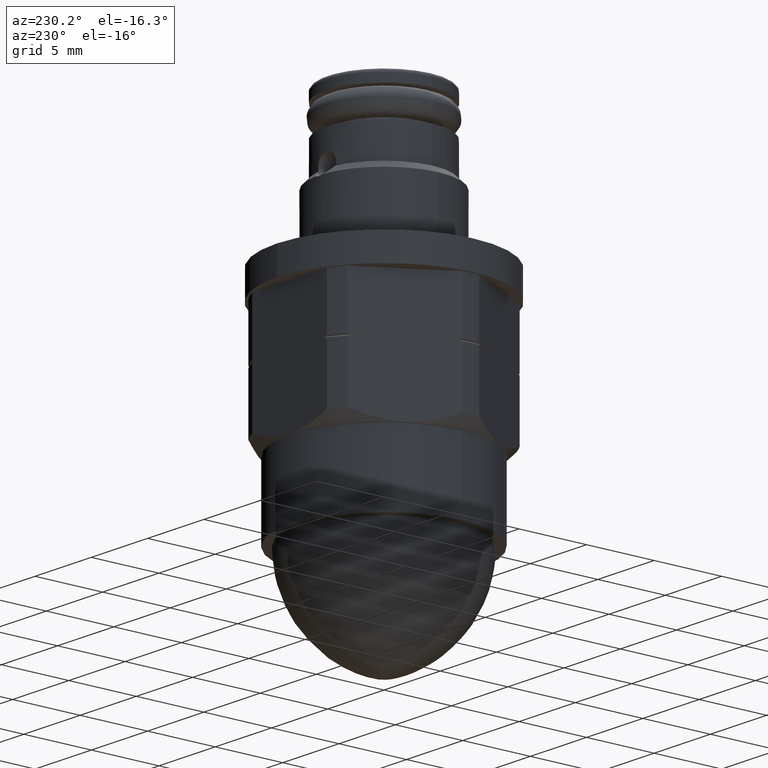
[diagram: clean part render]
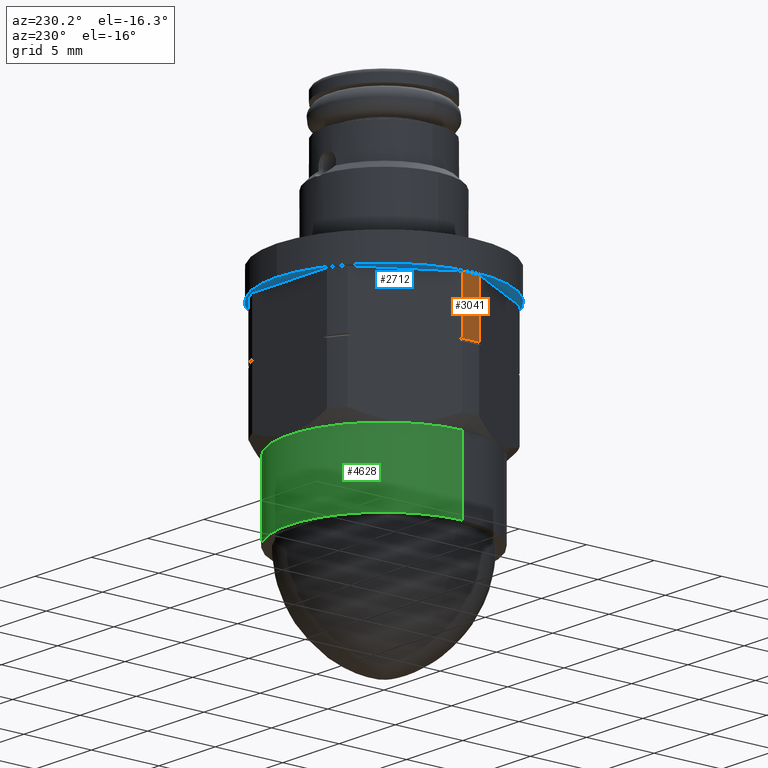
[diagram: same view with three faces highlighted in distinct colors, each labeled with its STEP entity id]
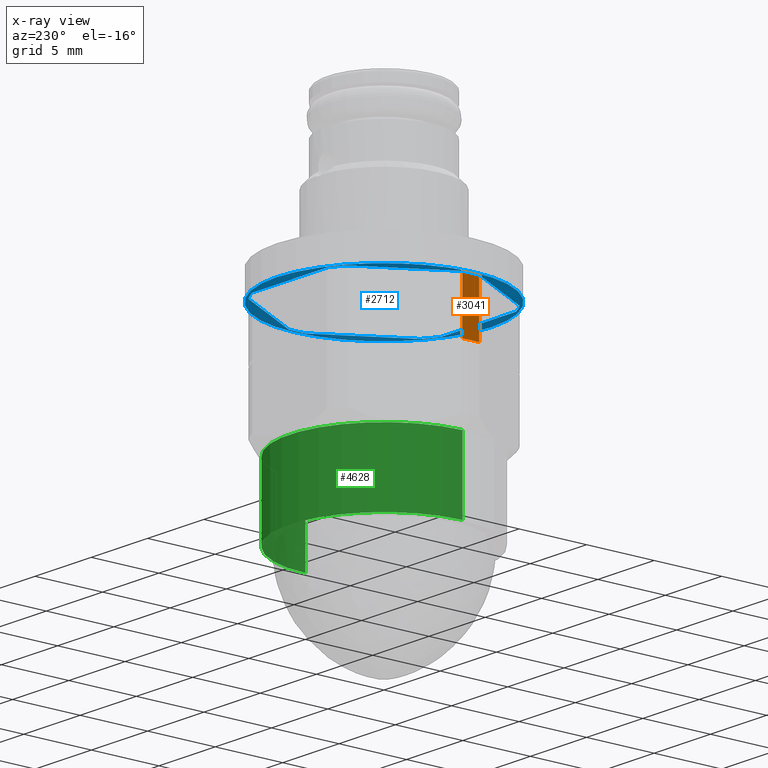
[diagram: x-ray of the same camera — body ghosted, the three highlighted faces saturated]
A machine part, auxiliary view with three faces highlighted in distinct colors.
The next image is the same camera in x-ray (body ghosted, the three faces saturated) — at least one of them is partly hidden behind the body in this view.
Their STEP definitions:

[orange] entity #3041 — the highlighted cylindrical surface (partial cylindrical patch) has radius 7.747 mm, axis along (0, 0, -1).
#762=CARTESIAN_POINT('',(-7.722127882661E0,-6.202821646863E-1,
-3.990676515813E0));
#769=DIRECTION('',(0.E0,0.E0,-1.E0));
#770=VECTOR('',#769,3.990676515813E0);
#771=CARTESIAN_POINT('',(-7.722127882661E0,-6.202821646863E-1,0.E0));
#772=LINE('',#771,#770);
#1067=DIRECTION('',(-7.366847594783E-13,-1.276706959865E-12,-1.E0));
#1068=VECTOR('',#1067,3.990676515813E0);
#1069=CARTESIAN_POINT('',(-7.722127882658E0,6.202821646914E-1,0.E0));
#1070=LINE('',#1069,#1068);
#1076=CARTESIAN_POINT('',(-7.722127882661E0,6.202821646863E-1,
-3.990676515813E0));
#1128=CARTESIAN_POINT('',(0.E0,0.E0,-3.990676515813E0));
#1129=DIRECTION('',(0.E0,0.E0,-1.E0));
#1130=DIRECTION('',(-9.967894517440E-1,-8.006740217971E-2,0.E0));
#1131=AXIS2_PLACEMENT_3D('',#1128,#1129,#1130);
#1133=CARTESIAN_POINT('',(0.E0,0.E0,0.E0));
#1134=DIRECTION('',(0.E0,0.E0,-1.E0));
#1135=DIRECTION('',(-9.967894517440E-1,-8.006740217972E-2,0.E0));
#1136=AXIS2_PLACEMENT_3D('',#1133,#1134,#1135);
#1702=VERTEX_POINT('',#762);
#1703=VERTEX_POINT('',#1076);
#1789=CARTESIAN_POINT('',(-7.722127882661E0,-6.202821646863E-1,0.E0));
#1791=VERTEX_POINT('',#1789);
#1792=CARTESIAN_POINT('',(-7.722127882658E0,6.202821646914E-1,0.E0));
#1794=VERTEX_POINT('',#1792);
#3029=CARTESIAN_POINT('',(0.E0,0.E0,4.5593E-1));
#3030=DIRECTION('',(0.E0,0.E0,-1.E0));
#3031=DIRECTION('',(-1.E0,0.E0,0.E0));
#3032=AXIS2_PLACEMENT_3D('',#3029,#3030,#3031);
#3033=CYLINDRICAL_SURFACE('',#3032,7.747E0);
#3034=ORIENTED_EDGE('',*,*,#2747,.T.);
#3036=ORIENTED_EDGE('',*,*,#3035,.T.);
#3037=ORIENTED_EDGE('',*,*,#3002,.F.);
#3038=ORIENTED_EDGE('',*,*,#2688,.F.);
#3039=EDGE_LOOP('',(#3034,#3036,#3037,#3038));
#3040=FACE_OUTER_BOUND('',#3039,.F.);
#3041=ADVANCED_FACE('',(#3040),#3033,.T.);
#1132=CIRCLE('',#1131,7.747E0);
#1137=CIRCLE('',#1136,7.747E0);
#2688=EDGE_CURVE('',#1791,#1794,#1137,.T.);
#2747=EDGE_CURVE('',#1791,#1702,#772,.T.);
#3002=EDGE_CURVE('',#1794,#1703,#1070,.T.);
#3035=EDGE_CURVE('',#1702,#1703,#1132,.T.);

[blue] entity #2712 — the highlighted planar face has unit normal (0, 0, -1).
#698=CARTESIAN_POINT('',(0.E0,0.E0,0.E0));
#699=DIRECTION('',(0.E0,0.E0,-1.E0));
#700=DIRECTION('',(0.E0,1.E0,0.E0));
#701=AXIS2_PLACEMENT_3D('',#698,#699,#700);
#703=CARTESIAN_POINT('',(0.E0,0.E0,0.E0));
#704=DIRECTION('',(0.E0,0.E0,1.E0));
#705=DIRECTION('',(0.E0,1.E0,0.E0));
#706=AXIS2_PLACEMENT_3D('',#703,#704,#705);
#708=DIRECTION('',(-5.E-1,8.660254037844E-1,0.E0));
#709=VECTOR('',#708,6.647767658396E0);
#710=CARTESIAN_POINT('',(-4.398244053463E0,-6.377417835314E0,0.E0));
#711=LINE('',#710,#709);
#773=CARTESIAN_POINT('',(0.E0,0.E0,0.E0));
#774=DIRECTION('',(0.E0,0.E0,-1.E0));
#775=DIRECTION('',(-4.290543215675E-1,-9.032786885255E-1,0.E0));
#776=AXIS2_PLACEMENT_3D('',#773,#774,#775);
#778=DIRECTION('',(-1.E0,0.E0,0.E0));
#779=VECTOR('',#778,6.647767658394E0);
#780=CARTESIAN_POINT('',(3.323883829202E0,-6.9977E0,0.E0));
#781=LINE('',#780,#779);
#843=CARTESIAN_POINT('',(0.E0,0.E0,0.E0));
#844=DIRECTION('',(0.E0,0.E0,-1.E0));
#845=DIRECTION('',(5.677351301775E-1,-8.232112863429E-1,0.E0));
#846=AXIS2_PLACEMENT_3D('',#843,#844,#845);
#848=DIRECTION('',(-5.E-1,-8.660254037844E-1,0.E0));
#849=VECTOR('',#848,6.647767658394E0);
#850=CARTESIAN_POINT('',(7.722127882666E0,-6.202821646787E-1,0.E0));
#851=LINE('',#850,#849);
#918=CARTESIAN_POINT('',(0.E0,0.E0,0.E0));
#919=DIRECTION('',(0.E0,0.E0,-1.E0));
#920=DIRECTION('',(9.967894517441E-1,8.006740217947E-2,0.E0));
#921=AXIS2_PLACEMENT_3D('',#918,#919,#920);
#923=DIRECTION('',(5.E-1,-8.660254037844E-1,0.E0));
#924=VECTOR('',#923,6.647767658396E0);
#925=CARTESIAN_POINT('',(4.398244053464E0,6.377417835314E0,0.E0));
#926=LINE('',#925,#924);
#988=CARTESIAN_POINT('',(0.E0,0.E0,0.E0));
#989=DIRECTION('',(0.E0,0.E0,-1.E0));
#990=DIRECTION('',(4.290543215724E-1,9.032786885231E-1,0.E0));
#991=AXIS2_PLACEMENT_3D('',#988,#989,#990);
#993=DIRECTION('',(1.E0,0.E0,0.E0));
#994=VECTOR('',#993,6.647767658395E0);
#995=CARTESIAN_POINT('',(-3.323883829188E0,6.9977E0,0.E0));
#996=LINE('',#995,#994);
#1058=CARTESIAN_POINT('',(0.E0,0.E0,0.E0));
#1059=DIRECTION('',(0.E0,0.E0,-1.E0));
#1060=DIRECTION('',(-5.677351301734E-1,8.232112863457E-1,0.E0));
#1061=AXIS2_PLACEMENT_3D('',#1058,#1059,#1060);
#1063=DIRECTION('',(5.E-1,8.660254037844E-1,0.E0));
#1064=VECTOR('',#1063,6.647767658394E0);
#1065=CARTESIAN_POINT('',(-7.722127882658E0,6.202821646914E-1,0.E0));
#1066=LINE('',#1065,#1064);
#1133=CARTESIAN_POINT('',(0.E0,0.E0,0.E0));
#1134=DIRECTION('',(0.E0,0.E0,-1.E0));
#1135=DIRECTION('',(-9.967894517440E-1,-8.006740217972E-2,0.E0));
#1136=AXIS2_PLACEMENT_3D('',#1133,#1134,#1135);
#1781=CARTESIAN_POINT('',(0.E0,7.94E0,0.E0));
#1783=VERTEX_POINT('',#1781);
#1785=CARTESIAN_POINT('',(0.E0,-7.94E0,0.E0));
#1787=VERTEX_POINT('',#1785);
#1788=CARTESIAN_POINT('',(-4.398244053463E0,-6.377417835314E0,0.E0));
#1789=CARTESIAN_POINT('',(-7.722127882661E0,-6.202821646863E-1,0.E0));
#1790=VERTEX_POINT('',#1788);
#1791=VERTEX_POINT('',#1789);
#1792=CARTESIAN_POINT('',(-7.722127882658E0,6.202821646914E-1,0.E0));
#1793=CARTESIAN_POINT('',(-4.398244053461E0,6.377417835317E0,0.E0));
#1794=VERTEX_POINT('',#1792);
#1795=VERTEX_POINT('',#1793);
#1796=CARTESIAN_POINT('',(-3.323883829188E0,6.9977E0,0.E0));
#1797=CARTESIAN_POINT('',(3.323883829207E0,6.9977E0,0.E0));
#1798=VERTEX_POINT('',#1796);
#1799=VERTEX_POINT('',#1797);
#1800=CARTESIAN_POINT('',(4.398244053464E0,6.377417835314E0,0.E0));
#1801=CARTESIAN_POINT('',(7.722127882662E0,6.202821646863E-1,0.E0));
#1802=VERTEX_POINT('',#1800);
#1803=VERTEX_POINT('',#1801);
#1804=CARTESIAN_POINT('',(7.722127882666E0,-6.202821646787E-1,0.E0));
#1805=CARTESIAN_POINT('',(4.398244053469E0,-6.377417835305E0,0.E0));
#1806=VERTEX_POINT('',#1804);
#1807=VERTEX_POINT('',#1805);
#1808=CARTESIAN_POINT('',(3.323883829202E0,-6.9977E0,0.E0));
#1809=CARTESIAN_POINT('',(-3.323883829192E0,-6.9977E0,0.E0));
#1810=VERTEX_POINT('',#1808);
#1811=VERTEX_POINT('',#1809);
#2677=CARTESIAN_POINT('',(0.E0,0.E0,0.E0));
#2678=DIRECTION('',(0.E0,0.E0,-1.E0));
#2679=DIRECTION('',(0.E0,1.E0,0.E0));
#2680=AXIS2_PLACEMENT_3D('',#2677,#2678,#2679);
#2681=PLANE('',#2680);
#2682=ORIENTED_EDGE('',*,*,#1839,.F.);
#2683=ORIENTED_EDGE('',*,*,#1869,.T.);
#2684=EDGE_LOOP('',(#2682,#2683));
#2685=FACE_OUTER_BOUND('',#2684,.F.);
#2687=ORIENTED_EDGE('',*,*,#2686,.T.);
#2689=ORIENTED_EDGE('',*,*,#2688,.T.);
#2691=ORIENTED_EDGE('',*,*,#2690,.T.);
#2693=ORIENTED_EDGE('',*,*,#2692,.T.);
#2695=ORIENTED_EDGE('',*,*,#2694,.T.);
#2697=ORIENTED_EDGE('',*,*,#2696,.T.);
#2699=ORIENTED_EDGE('',*,*,#2698,.T.);
#2701=ORIENTED_EDGE('',*,*,#2700,.T.);
#2703=ORIENTED_EDGE('',*,*,#2702,.T.);
#2705=ORIENTED_EDGE('',*,*,#2704,.T.);
#2707=ORIENTED_EDGE('',*,*,#2706,.T.);
#2709=ORIENTED_EDGE('',*,*,#2708,.T.);
#2710=EDGE_LOOP('',(#2687,#2689,#2691,#2693,#2695,#2697,#2699,#2701,#2703,#2705,
#2707,#2709));
#2711=FACE_BOUND('',#2710,.F.);
#2712=ADVANCED_FACE('',(#2685,#2711),#2681,.T.);
#702=CIRCLE('',#701,7.94E0);
#707=CIRCLE('',#706,7.94E0);
#777=CIRCLE('',#776,7.747E0);
#847=CIRCLE('',#846,7.747E0);
#922=CIRCLE('',#921,7.747E0);
#992=CIRCLE('',#991,7.747E0);
#1062=CIRCLE('',#1061,7.747E0);
#1137=CIRCLE('',#1136,7.747E0);
#1839=EDGE_CURVE('',#1783,#1787,#702,.T.);
#1869=EDGE_CURVE('',#1783,#1787,#707,.T.);
#2686=EDGE_CURVE('',#1790,#1791,#711,.T.);
#2688=EDGE_CURVE('',#1791,#1794,#1137,.T.);
#2690=EDGE_CURVE('',#1794,#1795,#1066,.T.);
#2692=EDGE_CURVE('',#1795,#1798,#1062,.T.);
#2694=EDGE_CURVE('',#1798,#1799,#996,.T.);
#2696=EDGE_CURVE('',#1799,#1802,#992,.T.);
#2698=EDGE_CURVE('',#1802,#1803,#926,.T.);
#2700=EDGE_CURVE('',#1803,#1806,#922,.T.);
#2702=EDGE_CURVE('',#1806,#1807,#851,.T.);
#2704=EDGE_CURVE('',#1807,#1810,#847,.T.);
#2706=EDGE_CURVE('',#1810,#1811,#781,.T.);
#2708=EDGE_CURVE('',#1811,#1790,#777,.T.);

[green] entity #4628 — the highlighted cylindrical surface (partial cylindrical patch) has radius 6.985 mm, axis along (0, 0, 1).
#4367=CARTESIAN_POINT('',(0.E0,0.E0,-9.144E0));
#4368=DIRECTION('',(0.E0,0.E0,1.E0));
#4369=DIRECTION('',(1.E0,0.E0,0.E0));
#4370=AXIS2_PLACEMENT_3D('',#4367,#4368,#4369);
#4372=DIRECTION('',(0.E0,0.E0,-1.E0));
#4373=VECTOR('',#4372,5.334E0);
#4374=CARTESIAN_POINT('',(6.985E0,0.E0,-9.144E0));
#4375=LINE('',#4374,#4373);
#4376=DIRECTION('',(0.E0,0.E0,-1.E0));
#4377=VECTOR('',#4376,5.334E0);
#4378=CARTESIAN_POINT('',(-6.985E0,0.E0,-9.144E0));
#4379=LINE('',#4378,#4377);
#4390=CARTESIAN_POINT('',(0.E0,0.E0,-1.4478E1));
#4391=DIRECTION('',(0.E0,0.E0,1.E0));
#4392=DIRECTION('',(1.E0,0.E0,0.E0));
#4393=AXIS2_PLACEMENT_3D('',#4390,#4391,#4392);
#4507=CARTESIAN_POINT('',(6.985E0,0.E0,-9.144E0));
#4508=CARTESIAN_POINT('',(6.985E0,0.E0,-1.4478E1));
#4509=VERTEX_POINT('',#4507);
#4510=VERTEX_POINT('',#4508);
#4511=CARTESIAN_POINT('',(-6.985E0,0.E0,-9.144E0));
#4512=CARTESIAN_POINT('',(-6.985E0,0.E0,-1.4478E1));
#4513=VERTEX_POINT('',#4511);
#4514=VERTEX_POINT('',#4512);
#4614=CARTESIAN_POINT('',(0.E0,0.E0,-2.30124E1));
#4615=DIRECTION('',(0.E0,0.E0,1.E0));
#4616=DIRECTION('',(-1.E0,0.E0,0.E0));
#4617=AXIS2_PLACEMENT_3D('',#4614,#4615,#4616);
#4618=CYLINDRICAL_SURFACE('',#4617,6.985E0);
#4620=ORIENTED_EDGE('',*,*,#4619,.F.);
#4621=ORIENTED_EDGE('',*,*,#4587,.T.);
#4623=ORIENTED_EDGE('',*,*,#4622,.T.);
#4625=ORIENTED_EDGE('',*,*,#4624,.F.);
#4626=EDGE_LOOP('',(#4620,#4621,#4623,#4625));
#4627=FACE_OUTER_BOUND('',#4626,.F.);
#4628=ADVANCED_FACE('',(#4627),#4618,.T.);
#4371=CIRCLE('',#4370,6.985E0);
#4394=CIRCLE('',#4393,6.985E0);
#4587=EDGE_CURVE('',#4509,#4513,#4371,.T.);
#4619=EDGE_CURVE('',#4509,#4510,#4375,.T.);
#4622=EDGE_CURVE('',#4513,#4514,#4379,.T.);
#4624=EDGE_CURVE('',#4510,#4514,#4394,.T.);